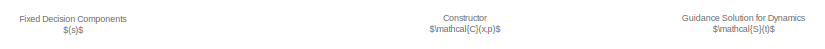
[diagram: root canvas - part 1/4, top left region]
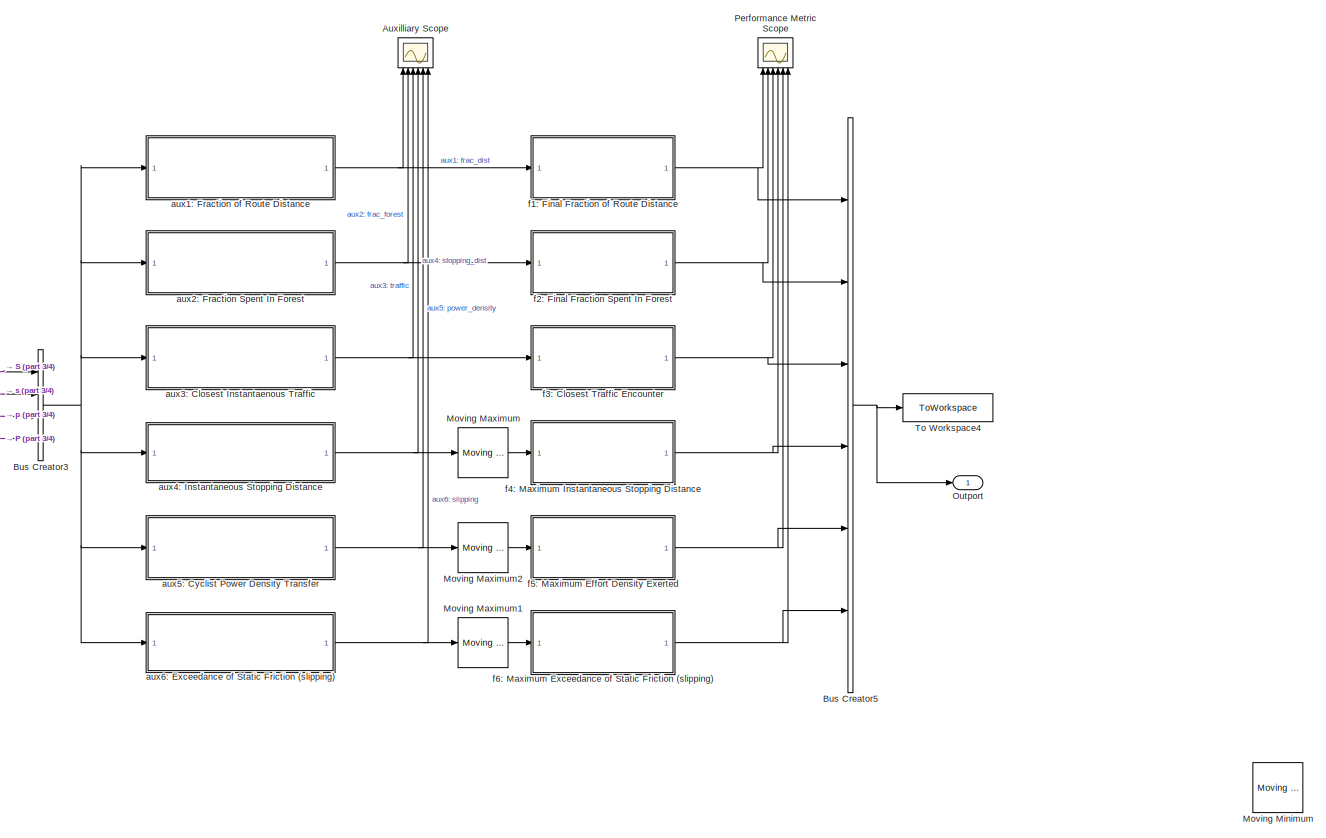
[diagram: root canvas - part 2/4, right side, full height]
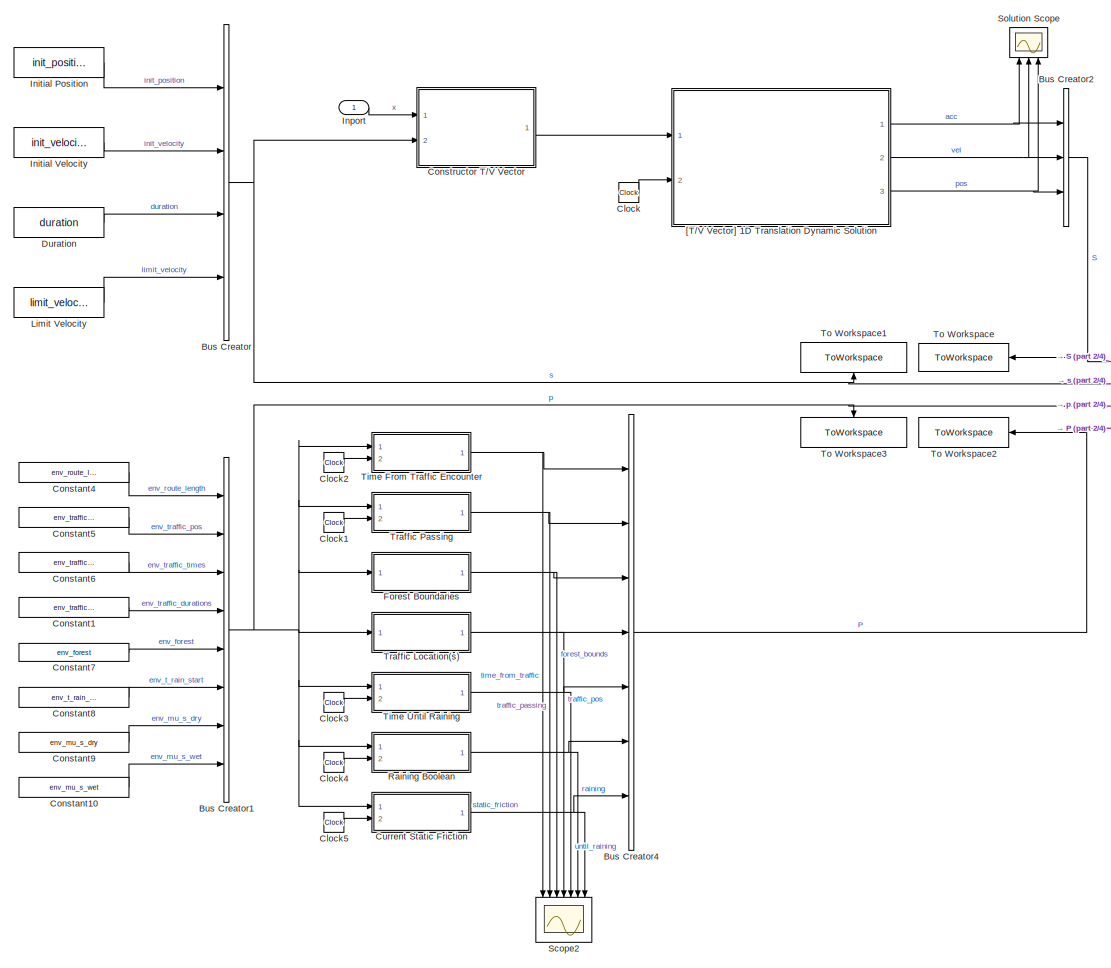
[diagram: root canvas - part 3/4, left side, full height]
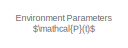
[diagram: root canvas - part 4/4, middle left region]
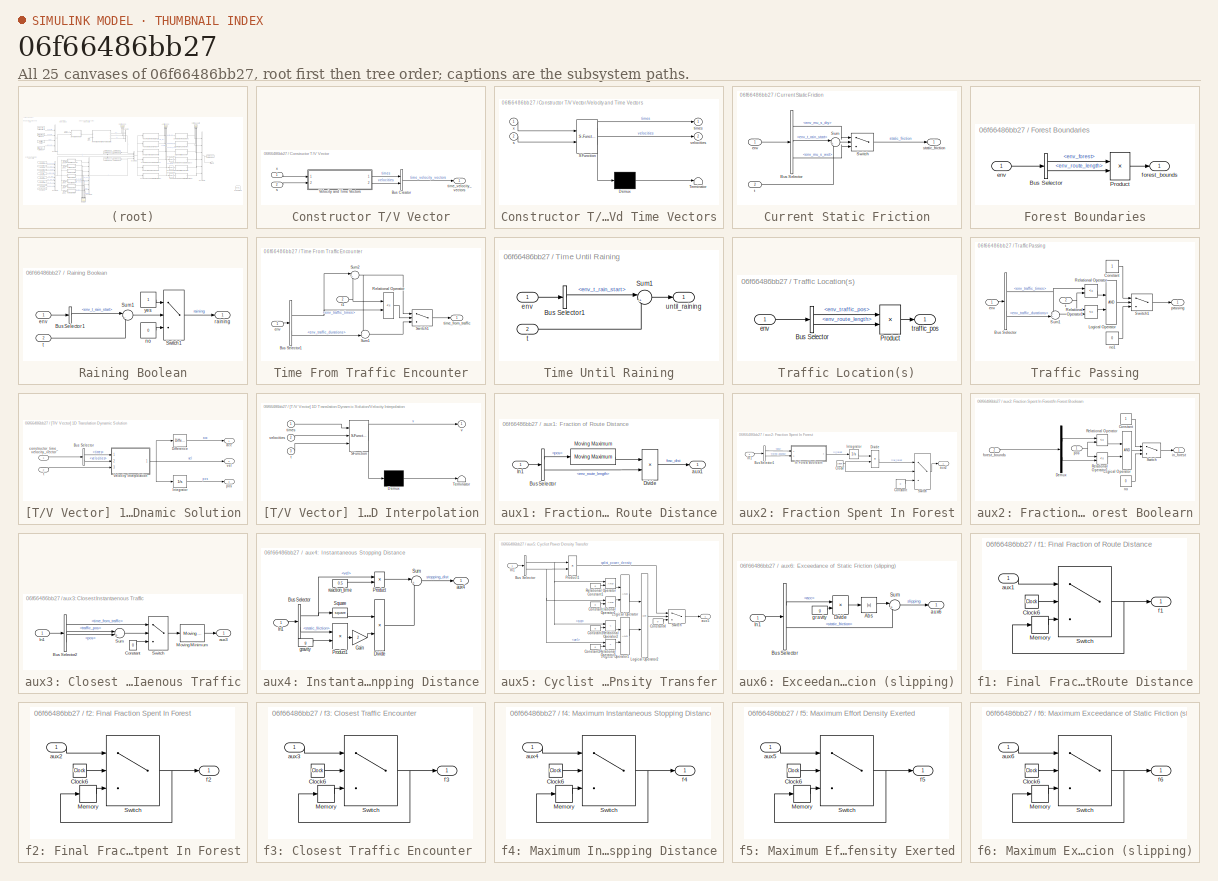
[diagram: thumbnail index - all 25 canvases of the model, root first then tree order]
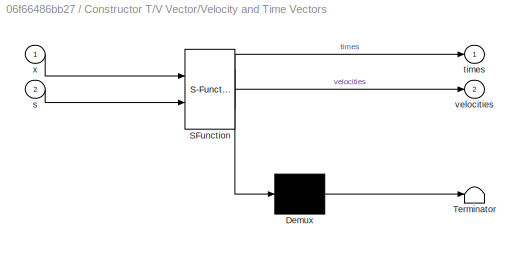
MODEL slx_06f66486bb27
KIND model
CONFIG AbsTol = auto
CONFIG EnableMultiTasking = off
CONFIG FixedStep = 0.1
CONFIG MaxStep = auto
CONFIG MinStep = auto
CONFIG RelTol = 1e-3
CONFIG SampleTimeConstraint = Unconstrained
CONFIG Solver = ode4
CONFIG SolverName = ode4
CONFIG StartTime = 0.0
CONFIG StopTime = 200
BLOCK [Scope] Auxilliary Scope
  Floating = off
  NumInputPorts = 6
  Ports = [6]
  ScopeSpecificationString = Simulink.scopes.TimeScopeBlockCfg('CurrentConfiguration', extmgr.ConfigurationSet(extmgr.Configuration('Core','General UI',true),extmgr.Configuration('Core','Source UI',true),extmgr.Configuration('Sources','WiredSimulink',true,'DataLoggingVariableName','ScopeData2'),extmgr.Configuration('Visuals','Time Domain',true,'SerializedDisplays',{struct('MinYLimReal','-0.15','MaxYLimReal','1.35','YLabelReal...<+4910ch>
BLOCK [BusCreator] Bus Creator
  DisplayOption = bar
  InheritFromInputs = on
  Inputs = 4
  Ports = [4, 1]
BLOCK [BusCreator] Bus Creator1
  DisplayOption = bar
  InheritFromInputs = on
  Inputs = 8
  Ports = [8, 1]
BLOCK [BusCreator] Bus Creator2
  DisplayOption = bar
  InheritFromInputs = on
  Inputs = 3
  Ports = [3, 1]
BLOCK [BusCreator] Bus Creator3
  DisplayOption = bar
  InheritFromInputs = on
  Inputs = 4
  Ports = [4, 1]
BLOCK [BusCreator] Bus Creator4
  DisplayOption = bar
  InheritFromInputs = on
  Inputs = 7
  Ports = [7, 1]
BLOCK [BusCreator] Bus Creator5
  DisplayOption = bar
  InheritFromInputs = on
  Inputs = 6
  Ports = [6, 1]
BLOCK [Clock] Clock
BLOCK [Clock] Clock1
BLOCK [Clock] Clock2
BLOCK [Clock] Clock3
BLOCK [Clock] Clock4
BLOCK [Clock] Clock5
BLOCK [Constant] Constant1
  Value = env_traffic_durations
BLOCK [Constant] Constant10
  Value = env_mu_s_wet
BLOCK [Constant] Constant4
  Value = env_route_length
BLOCK [Constant] Constant5
  Value = env_traffic_pos
BLOCK [Constant] Constant6
  Value = env_traffic_times
BLOCK [Constant] Constant7
  Value = env_forest
BLOCK [Constant] Constant8
  Value = env_t_rain_start
BLOCK [Constant] Constant9
  Value = env_mu_s_dry
BLOCK [SubSystem] Constructor T//V Vector
  Ports = [2, 1]
  RequestExecContextInheritance = off
BLOCK [BusCreator] Constructor T//V Vector/Bus Creator
  DisplayOption = bar
  InheritFromInputs = on
  Inputs = 2
  Ports = [2, 1]
BLOCK [SubSystem] Constructor T//V Vector/Velocity and Time Vectors
  ErrorFcn = Stateflow.Translate.translate
  PermitHierarchicalResolution = ExplicitOnly
  Ports = [2, 2]
  RequestExecContextInheritance = off
  SFBlockType = MATLAB Function
  TreatAsAtomicUnit = on
BLOCK [Demux] Constructor T//V Vector/Velocity and Time Vectors/ Demux 
  Outputs = 1
  Ports = [1, 1]
BLOCK [S-Function] Constructor T//V Vector/Velocity and Time Vectors/ SFunction 
  EnableBusSupport = on
  FunctionName = sf_sfun
  PortCounts = [2 3]
  Ports = [2, 3]
  SFcnIsStateOwnerBlock = off
  SFunctionDeploymentMode = off
  Tag = Stateflow S-Function 3
BLOCK [Terminator] Constructor T//V Vector/Velocity and Time Vectors/ Terminator 
BLOCK [Inport] Constructor T//V Vector/Velocity and Time Vectors/s
  IconDisplay = Port number
  Port = 2
BLOCK [Outport] Constructor T//V Vector/Velocity and Time Vectors/times
  IconDisplay = Port number
BLOCK [Outport] Constructor T//V Vector/Velocity and Time Vectors/velocities
  IconDisplay = Port number
  Port = 2
BLOCK [Inport] Constructor T//V Vector/Velocity and Time Vectors/x
  IconDisplay = Port number
BLOCK [Inport] Constructor T//V Vector/s
  IconDisplay = Port number
  Port = 2
BLOCK [Outport] Constructor T//V Vector/time_velocity_vectors
  IconDisplay = Port number
BLOCK [Inport] Constructor T//V Vector/x
  IconDisplay = Port number
BLOCK [SubSystem] Current Static Friction
  Ports = [2, 1]
  RequestExecContextInheritance = off
BLOCK [BusSelector] Current Static Friction/Bus Selector
  OutputAsBus = off
  OutputSignals = env_mu_s_dry,env_t_rain_start,env_mu_s_wet
  Ports = [1, 3]
BLOCK [Sum] Current Static Friction/Sum
  IconShape = round
  InputSameDT = off
  Inputs = |+-
  OutDataTypeStr = Inherit: Inherit via internal rule
  Ports = [2, 1]
  SaturateOnIntegerOverflow = off
BLOCK [Switch] Current Static Friction/Switch
  Criteria = u2 > Threshold
  InputSameDT = off
  SaturateOnIntegerOverflow = off
BLOCK [Inport] Current Static Friction/env
  IconDisplay = Port number
BLOCK [Outport] Current Static Friction/static_friction
  IconDisplay = Port number
BLOCK [Inport] Current Static Friction/t
  IconDisplay = Port number
  Port = 2
BLOCK [Constant] Duration
  Value = duration
BLOCK [SubSystem] Forest Boundaries
  Ports = [1, 1]
  RequestExecContextInheritance = off
BLOCK [BusSelector] Forest Boundaries/Bus Selector
  OutputAsBus = off
  OutputSignals = env_forest,env_route_length
  Ports = [1, 2]
BLOCK [Product] Forest Boundaries/Product
  InputSameDT = off
  OutDataTypeStr = Inherit: Inherit via internal rule
  Ports = [2, 1]
  RndMeth = Floor
  SaturateOnIntegerOverflow = off
BLOCK [Inport] Forest Boundaries/env
  IconDisplay = Port number
BLOCK [Outport] Forest Boundaries/forest_bounds
  IconDisplay = Port number
BLOCK [Constant] Initial Position
  Value = init_position
BLOCK [Constant] Initial Velocity
  Value = init_velocity
BLOCK [Inport] Inport
  IconDisplay = Port number
  OutDataTypeStr = double
  PortDimensions = 6
  SignalType = real
BLOCK [Constant] Limit Velocity
  Value = limit_velocity
BLOCK [Reference] Moving Maximum  REF=dspstat3/Moving
Maximum
  Ports = [1, 1]
  SourceBlock = dspstat3/Moving\nMaximum
  SourceProductBaseCode = DS
  SourceProductName = DSP System Toolbox
  SourceType = dsp.MovingMaximum
BLOCK [Reference] Moving Maximum1  REF=dspstat3/Moving
Maximum
  Ports = [1, 1]
  SourceBlock = dspstat3/Moving\nMaximum
  SourceProductBaseCode = DS
  SourceProductName = DSP System Toolbox
  SourceType = dsp.MovingMaximum
BLOCK [Reference] Moving Maximum2  REF=dspstat3/Moving
Maximum
  Ports = [1, 1]
  SourceBlock = dspstat3/Moving\nMaximum
  SourceProductBaseCode = DS
  SourceProductName = DSP System Toolbox
  SourceType = dsp.MovingMaximum
BLOCK [Reference] Moving Minimum  REF=dspstat3/Moving
Minimum
  Commented = on
  Ports = [1, 1]
  SourceBlock = dspstat3/Moving\nMinimum
  SourceProductBaseCode = DS
  SourceProductName = DSP System Toolbox
  SourceType = dsp.MovingMinimum
BLOCK [Outport] Outport
  IconDisplay = Port number
BLOCK [Scope] Performance Metric Scope
  Floating = off
  NumInputPorts = 6
  Ports = [6]
  ScopeSpecificationString = Simulink.scopes.TimeScopeBlockCfg('CurrentConfiguration', extmgr.ConfigurationSet(extmgr.Configuration('Core','General UI',true),extmgr.Configuration('Core','Source UI',true),extmgr.Configuration('Sources','WiredSimulink',true,'DataLoggingVariableName','ScopeData1'),extmgr.Configuration('Visuals','Time Domain',true,'SerializedDisplays',{struct('MinYLimReal','-0.15','MaxYLimReal','1.35','YLabelReal...<+5057ch>
BLOCK [SubSystem] Raining Boolean
  Ports = [2, 1]
  RequestExecContextInheritance = off
BLOCK [BusSelector] Raining Boolean/Bus Selector1
  OutputAsBus = off
  OutputSignals = env_t_rain_start
  Ports = [1, 1]
BLOCK [Sum] Raining Boolean/Sum1
  IconShape = round
  InputSameDT = off
  Inputs = |-+
  OutDataTypeStr = Inherit: Inherit via internal rule
  Ports = [2, 1]
  SaturateOnIntegerOverflow = off
BLOCK [Switch] Raining Boolean/Switch1
  Criteria = u2 > Threshold
  InputSameDT = off
  SaturateOnIntegerOverflow = off
BLOCK [Inport] Raining Boolean/env
  IconDisplay = Port number
BLOCK [Constant] Raining Boolean/no
  Value = 0
BLOCK [Outport] Raining Boolean/raining
  IconDisplay = Port number
BLOCK [Inport] Raining Boolean/t
  IconDisplay = Port number
  Port = 2
BLOCK [Constant] Raining Boolean/yes
BLOCK [Scope] Scope2
  Floating = off
  NumInputPorts = 7
  Ports = [7]
  ScopeSpecificationString = Simulink.scopes.TimeScopeBlockCfg('CurrentConfiguration', extmgr.ConfigurationSet(extmgr.Configuration('Core','General UI',true),extmgr.Configuration('Core','Source UI',true),extmgr.Configuration('Sources','WiredSimulink',true),extmgr.Configuration('Visuals','Time Domain',true,'SerializedDisplays',{struct('MinYLimReal','-40.5125','MaxYLimReal','165.6125','YLabelReal','','MinYLimMag','0.00000','Max...<+6292ch>
BLOCK [Scope] Solution Scope
  Floating = off
  NumInputPorts = 3
  Ports = [3]
  ScopeSpecificationString = Simulink.scopes.TimeScopeBlockCfg('CurrentConfiguration', extmgr.ConfigurationSet(extmgr.Configuration('Core','General UI',true),extmgr.Configuration('Core','Source UI',true),extmgr.Configuration('Sources','WiredSimulink',true,'DataLoggingVariableName','ScopeData1'),extmgr.Configuration('Visuals','Time Domain',true,'SerializedDisplays',{struct('MinYLimReal','-0.50393','MaxYLimReal','0.19607','YLab...<+2756ch>
BLOCK [SubSystem] Time From Traffic Encounter
  Ports = [2, 1]
  RequestExecContextInheritance = off
BLOCK [BusSelector] Time From Traffic Encounter/Bus Selector1
  OutputAsBus = off
  OutputSignals = env_traffic_times,env_traffic_durations
  Ports = [1, 2]
BLOCK [RelationalOperator] Time From Traffic Encounter/Relational Operator
  InputSameDT = off
  Operator = <=
  OutDataTypeStr = boolean
  Ports = [2, 1]
  RndMeth = Simplest
BLOCK [Sum] Time From Traffic Encounter/Sum1
  IconShape = round
  InputSameDT = off
  Inputs = --|
  OutDataTypeStr = Inherit: Inherit via internal rule
  Ports = [2, 1]
  SaturateOnIntegerOverflow = off
BLOCK [Sum] Time From Traffic Encounter/Sum2
  IconShape = round
  InputSameDT = off
  Inputs = |+-
  OutDataTypeStr = Inherit: Inherit via internal rule
  Ports = [2, 1]
  SaturateOnIntegerOverflow = off
BLOCK [Switch] Time From Traffic Encounter/Switch1
  Criteria = u2 > Threshold
  InputSameDT = off
  SaturateOnIntegerOverflow = off
BLOCK [Inport] Time From Traffic Encounter/env
  IconDisplay = Port number
BLOCK [Inport] Time From Traffic Encounter/t1
  IconDisplay = Port number
  Port = 2
BLOCK [Outport] Time From Traffic Encounter/time_from_traffic
  IconDisplay = Port number
BLOCK [SubSystem] Time Until Raining
  Ports = [2, 1]
  RequestExecContextInheritance = off
BLOCK [BusSelector] Time Until Raining/Bus Selector1
  OutputAsBus = off
  OutputSignals = env_t_rain_start
  Ports = [1, 1]
BLOCK [Sum] Time Until Raining/Sum1
  IconShape = round
  InputSameDT = off
  Inputs = |+-
  OutDataTypeStr = Inherit: Inherit via internal rule
  Ports = [2, 1]
  SaturateOnIntegerOverflow = off
BLOCK [Inport] Time Until Raining/env
  IconDisplay = Port number
BLOCK [Inport] Time Until Raining/t
  IconDisplay = Port number
  Port = 2
BLOCK [Outport] Time Until Raining/until_raining
  IconDisplay = Port number
BLOCK [ToWorkspace] To Workspace
  FixptAsFi = on
  MaxDataPoints = inf
  Ports = [1]
  SampleTime = -1
  SaveFormat = Timeseries
  VariableName = S
BLOCK [ToWorkspace] To Workspace1
  FixptAsFi = on
  MaxDataPoints = inf
  Ports = [1]
  SampleTime = -1
  SaveFormat = Timeseries
  VariableName = s
BLOCK [ToWorkspace] To Workspace2
  FixptAsFi = on
  MaxDataPoints = inf
  Ports = [1]
  SampleTime = -1
  SaveFormat = Timeseries
  VariableName = P
BLOCK [ToWorkspace] To Workspace3
  FixptAsFi = on
  MaxDataPoints = inf
  Ports = [1]
  SampleTime = -1
  SaveFormat = Timeseries
  VariableName = p
BLOCK [ToWorkspace] To Workspace4
  FixptAsFi = on
  MaxDataPoints = inf
  Ports = [1]
  SampleTime = -1
  SaveFormat = Timeseries
  VariableName = f
BLOCK [SubSystem] Traffic Location(s)
  Ports = [1, 1]
  RequestExecContextInheritance = off
BLOCK [BusSelector] Traffic Location(s)/Bus Selector
  OutputAsBus = off
  OutputSignals = env_traffic_pos,env_route_length
  Ports = [1, 2]
BLOCK [Product] Traffic Location(s)/Product
  InputSameDT = off
  OutDataTypeStr = Inherit: Inherit via internal rule
  Ports = [2, 1]
  RndMeth = Floor
  SaturateOnIntegerOverflow = off
BLOCK [Inport] Traffic Location(s)/env
  IconDisplay = Port number
BLOCK [Outport] Traffic Location(s)/traffic_pos
  IconDisplay = Port number
BLOCK [SubSystem] Traffic Passing
  Ports = [2, 1]
  RequestExecContextInheritance = off
BLOCK [BusSelector] Traffic Passing/Bus Selector
  OutputAsBus = off
  OutputSignals = env_traffic_times,env_traffic_durations
  Ports = [1, 2]
BLOCK [Constant] Traffic Passing/Constant
BLOCK [Logic] Traffic Passing/Logical Operator
  AllPortsSameDT = off
  OutDataTypeStr = boolean
  Ports = [2, 1]
BLOCK [RelationalOperator] Traffic Passing/Relational Operator
  InputSameDT = off
  Operator = <=
  OutDataTypeStr = boolean
  Ports = [2, 1]
  RndMeth = Simplest
BLOCK [RelationalOperator] Traffic Passing/Relational Operator1
  InputSameDT = off
  Operator = <=
  OutDataTypeStr = boolean
  Ports = [2, 1]
  RndMeth = Simplest
BLOCK [Sum] Traffic Passing/Sum1
  IconShape = round
  InputSameDT = off
  Inputs = ++|
  OutDataTypeStr = Inherit: Inherit via internal rule
  Ports = [2, 1]
  SaturateOnIntegerOverflow = off
BLOCK [Switch] Traffic Passing/Switch1
  Criteria = u2 > Threshold
  InputSameDT = off
  SaturateOnIntegerOverflow = off
BLOCK [Inport] Traffic Passing/env
  IconDisplay = Port number
BLOCK [Constant] Traffic Passing/no1
  Value = 0
BLOCK [Outport] Traffic Passing/passing
  IconDisplay = Port number
BLOCK [Inport] Traffic Passing/t
  IconDisplay = Port number
  Port = 2
BLOCK [SubSystem] [T//V Vector] 1D Translation Dynamic Solution
  Ports = [2, 3]
  RequestExecContextInheritance = off
BLOCK [BusSelector] [T//V Vector] 1D Translation Dynamic Solution/Bus Selector
  OutputAsBus = off
  OutputSignals = times,velocities
  Ports = [1, 2]
BLOCK [Reference] [T//V Vector] 1D Translation Dynamic Solution/Difference  REF=simulink/Discrete/Difference
  Ports = [1, 1]
  SourceBlock = simulink/Discrete/Difference
  SourceProductBaseCode = SL
  SourceProductName = Simulink
  SourceType = Difference
BLOCK [Integrator] [T//V Vector] 1D Translation Dynamic Solution/Integrator
  InitialCondition = init_position
  Ports = [1, 1]
BLOCK [SubSystem] [T//V Vector] 1D Translation Dynamic Solution/Velocity Interpolation
  ErrorFcn = Stateflow.Translate.translate
  PermitHierarchicalResolution = ExplicitOnly
  Ports = [3, 1]
  RequestExecContextInheritance = off
  SFBlockType = MATLAB Function
  TreatAsAtomicUnit = on
BLOCK [Demux] [T//V Vector] 1D Translation Dynamic Solution/Velocity Interpolation/ Demux 
  Outputs = 1
  Ports = [1, 1]
BLOCK [S-Function] [T//V Vector] 1D Translation Dynamic Solution/Velocity Interpolation/ SFunction 
  EnableBusSupport = on
  FunctionName = sf_sfun
  PortCounts = [3 2]
  Ports = [3, 2]
  SFcnIsStateOwnerBlock = off
  SFunctionDeploymentMode = off
  Tag = Stateflow S-Function 2
BLOCK [Terminator] [T//V Vector] 1D Translation Dynamic Solution/Velocity Interpolation/ Terminator 
BLOCK [Inport] [T//V Vector] 1D Translation Dynamic Solution/Velocity Interpolation/t
  IconDisplay = Port number
  Port = 3
BLOCK [Inport] [T//V Vector] 1D Translation Dynamic Solution/Velocity Interpolation/times
  IconDisplay = Port number
BLOCK [Outport] [T//V Vector] 1D Translation Dynamic Solution/Velocity Interpolation/v
  IconDisplay = Port number
BLOCK [Inport] [T//V Vector] 1D Translation Dynamic Solution/Velocity Interpolation/velocities
  IconDisplay = Port number
  Port = 2
BLOCK [Outport] [T//V Vector] 1D Translation Dynamic Solution/acc
  IconDisplay = Port number
BLOCK [Inport] [T//V Vector] 1D Translation Dynamic Solution/constructor_time_velocity_vector
  IconDisplay = Port number
BLOCK [Outport] [T//V Vector] 1D Translation Dynamic Solution/pos
  IconDisplay = Port number
  Port = 3
BLOCK [Inport] [T//V Vector] 1D Translation Dynamic Solution/t
  IconDisplay = Port number
  Port = 2
BLOCK [Outport] [T//V Vector] 1D Translation Dynamic Solution/vel
  IconDisplay = Port number
  Port = 2
BLOCK [SubSystem] aux1: Fraction of Route Distance
  Ports = [1, 1]
  RequestExecContextInheritance = off
BLOCK [BusSelector] aux1: Fraction of Route Distance/Bus Selector
  OutputAsBus = off
  OutputSignals = S.pos,p.env_route_length
  Ports = [1, 2]
BLOCK [Product] aux1: Fraction of Route Distance/Divide
  InputSameDT = off
  Inputs = */
  OutDataTypeStr = Inherit: Inherit via internal rule
  Ports = [2, 1]
  RndMeth = Floor
  SaturateOnIntegerOverflow = off
BLOCK [Inport] aux1: Fraction of Route Distance/In1
  IconDisplay = Port number
BLOCK [Reference] aux1: Fraction of Route Distance/Moving Maximum  REF=dspstat3/Moving
Maximum
  Ports = [1, 1]
  SourceBlock = dspstat3/Moving\nMaximum
  SourceProductBaseCode = DS
  SourceProductName = DSP System Toolbox
  SourceType = dsp.MovingMaximum
BLOCK [Outport] aux1: Fraction of Route Distance/aux1
  IconDisplay = Port number
BLOCK [SubSystem] aux2: Fraction Spent In Forest
  Ports = [1, 1]
  RequestExecContextInheritance = off
BLOCK [BusSelector] aux2: Fraction Spent In Forest/Bus Selector1
  OutputAsBus = off
  OutputSignals = S.pos,P.forest_bounds
  Ports = [1, 2]
BLOCK [Clock] aux2: Fraction Spent In Forest/Clock7
BLOCK [Constant] aux2: Fraction Spent In Forest/Constant
  Value = 0
BLOCK [Product] aux2: Fraction Spent In Forest/Divide
  InputSameDT = off
  Inputs = */
  OutDataTypeStr = Inherit: Inherit via internal rule
  Ports = [2, 1]
  RndMeth = Floor
  SaturateOnIntegerOverflow = off
BLOCK [SubSystem] aux2: Fraction Spent In Forest/In Forest Boolearn
  Ports = [2, 1]
  RequestExecContextInheritance = off
BLOCK [Constant] aux2: Fraction Spent In Forest/In Forest Boolearn/Constant
BLOCK [Demux] aux2: Fraction Spent In Forest/In Forest Boolearn/Demux
  DisplayOption = bar
  Outputs = 2
  Ports = [1, 2]
BLOCK [Logic] aux2: Fraction Spent In Forest/In Forest Boolearn/Logical Operator
  AllPortsSameDT = off
  OutDataTypeStr = boolean
  Ports = [2, 1]
BLOCK [RelationalOperator] aux2: Fraction Spent In Forest/In Forest Boolearn/Relational Operator
  InputSameDT = off
  Operator = <=
  OutDataTypeStr = boolean
  Ports = [2, 1]
  RndMeth = Simplest
BLOCK [RelationalOperator] aux2: Fraction Spent In Forest/In Forest Boolearn/Relational Operator1
  InputSameDT = off
  Operator = <=
  OutDataTypeStr = boolean
  Ports = [2, 1]
  RndMeth = Simplest
BLOCK [Switch] aux2: Fraction Spent In Forest/In Forest Boolearn/Switch
  Criteria = u2 > Threshold
  InputSameDT = off
  SaturateOnIntegerOverflow = off
BLOCK [Inport] aux2: Fraction Spent In Forest/In Forest Boolearn/forest_bounds
  IconDisplay = Port number
  Port = 2
BLOCK [Outport] aux2: Fraction Spent In Forest/In Forest Boolearn/in_forest 
  IconDisplay = Port number
BLOCK [Constant] aux2: Fraction Spent In Forest/In Forest Boolearn/no
  Value = 0
BLOCK [Inport] aux2: Fraction Spent In Forest/In Forest Boolearn/pos 
  IconDisplay = Port number
BLOCK [Inport] aux2: Fraction Spent In Forest/In1
  IconDisplay = Port number
BLOCK [Integrator] aux2: Fraction Spent In Forest/Integrator
  Ports = [1, 1]
BLOCK [Switch] aux2: Fraction Spent In Forest/Switch
  Criteria = u2 > Threshold
  InputSameDT = off
  SaturateOnIntegerOverflow = off
BLOCK [Outport] aux2: Fraction Spent In Forest/aux2
  IconDisplay = Port number
BLOCK [SubSystem] aux3: Closest Instantaenous Traffic
  Ports = [1, 1]
  RequestExecContextInheritance = off
BLOCK [BusSelector] aux3: Closest Instantaenous Traffic/Bus Selector2
  OutputAsBus = off
  OutputSignals = P.time_from_traffic,P.traffic_pos,S.pos
  Ports = [1, 3]
BLOCK [Constant] aux3: Closest Instantaenous Traffic/Constant
  Value = 0
BLOCK [Inport] aux3: Closest Instantaenous Traffic/In1
  IconDisplay = Port number
BLOCK [Reference] aux3: Closest Instantaenous Traffic/Moving Minimum  REF=dspstat3/Moving
Minimum
  Ports = [1, 1]
  SourceBlock = dspstat3/Moving\nMinimum
  SourceProductBaseCode = DS
  SourceProductName = DSP System Toolbox
  SourceType = dsp.MovingMinimum
BLOCK [Sum] aux3: Closest Instantaenous Traffic/Sum
  IconShape = round
  InputSameDT = off
  Inputs = |+-
  OutDataTypeStr = Inherit: Inherit via internal rule
  Ports = [2, 1]
  SaturateOnIntegerOverflow = off
BLOCK [Switch] aux3: Closest Instantaenous Traffic/Switch
  Criteria = u2 > Threshold
  InputSameDT = off
  SaturateOnIntegerOverflow = off
BLOCK [Outport] aux3: Closest Instantaenous Traffic/aux3
  IconDisplay = Port number
BLOCK [SubSystem] aux4: Instantaneous Stopping Distance
  Ports = [1, 1]
  RequestExecContextInheritance = off
BLOCK [BusSelector] aux4: Instantaneous Stopping Distance/Bus Selector
  OutputAsBus = off
  OutputSignals = S.vel,P.static_friction
  Ports = [1, 2]
BLOCK [Product] aux4: Instantaneous Stopping Distance/Divide
  InputSameDT = off
  Inputs = */
  OutDataTypeStr = Inherit: Inherit via internal rule
  Ports = [2, 1]
  RndMeth = Floor
  SaturateOnIntegerOverflow = off
BLOCK [Gain] aux4: Instantaneous Stopping Distance/Gain
  Gain = 2
  OutDataTypeStr = Inherit: Inherit via internal rule
  ParamDataTypeStr = Inherit: Inherit via internal rule
  SaturateOnIntegerOverflow = off
BLOCK [Inport] aux4: Instantaneous Stopping Distance/In1
  IconDisplay = Port number
BLOCK [Product] aux4: Instantaneous Stopping Distance/Product
  InputSameDT = off
  OutDataTypeStr = Inherit: Inherit via internal rule
  Ports = [2, 1]
  RndMeth = Floor
  SaturateOnIntegerOverflow = off
BLOCK [Product] aux4: Instantaneous Stopping Distance/Product1
  InputSameDT = off
  OutDataTypeStr = Inherit: Inherit via internal rule
  Ports = [2, 1]
  RndMeth = Floor
  SaturateOnIntegerOverflow = off
BLOCK [Math] aux4: Instantaneous Stopping Distance/Square
  Operator = square
  Ports = [1, 1]
  SignedPower = off
BLOCK [Sum] aux4: Instantaneous Stopping Distance/Sum
  IconShape = round
  InputSameDT = off
  Inputs = |++
  OutDataTypeStr = Inherit: Inherit via internal rule
  Ports = [2, 1]
  SaturateOnIntegerOverflow = off
BLOCK [Outport] aux4: Instantaneous Stopping Distance/aux4
  IconDisplay = Port number
BLOCK [Constant] aux4: Instantaneous Stopping Distance/gravity
  Value = g
BLOCK [Constant] aux4: Instantaneous Stopping Distance/reaction_time
  Value = 0.5
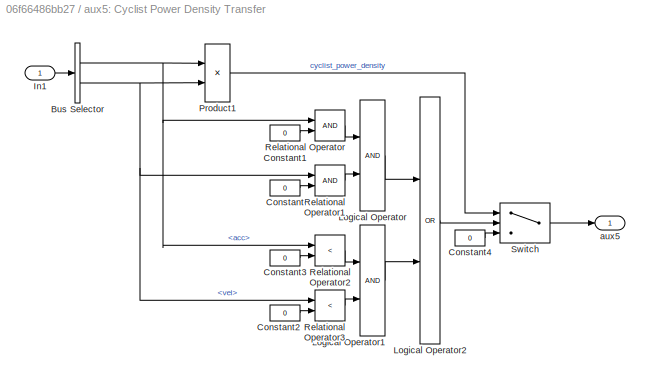
BLOCK [SubSystem] aux5: Cyclist Power Density Transfer
  Ports = [1, 1]
  RequestExecContextInheritance = off
BLOCK [BusSelector] aux5: Cyclist Power Density Transfer/Bus Selector
  OutputAsBus = off
  OutputSignals = S.acc,S.vel
  Ports = [1, 2]
BLOCK [Constant] aux5: Cyclist Power Density Transfer/Constant
  Value = 0
BLOCK [Constant] aux5: Cyclist Power Density Transfer/Constant1
  Value = 0
BLOCK [Constant] aux5: Cyclist Power Density Transfer/Constant2
  Value = 0
BLOCK [Constant] aux5: Cyclist Power Density Transfer/Constant3
  Value = 0
BLOCK [Constant] aux5: Cyclist Power Density Transfer/Constant4
  Value = 0
BLOCK [Inport] aux5: Cyclist Power Density Transfer/In1
  IconDisplay = Port number
BLOCK [Logic] aux5: Cyclist Power Density Transfer/Logical Operator
  AllPortsSameDT = off
  OutDataTypeStr = boolean
  Ports = [2, 1]
BLOCK [Logic] aux5: Cyclist Power Density Transfer/Logical Operator1
  AllPortsSameDT = off
  OutDataTypeStr = boolean
  Ports = [2, 1]
BLOCK [Logic] aux5: Cyclist Power Density Transfer/Logical Operator2
  AllPortsSameDT = off
  Operator = OR
  OutDataTypeStr = boolean
  Ports = [2, 1]
BLOCK [Product] aux5: Cyclist Power Density Transfer/Product1
  InputSameDT = off
  OutDataTypeStr = Inherit: Inherit via internal rule
  Ports = [2, 1]
  RndMeth = Floor
  SaturateOnIntegerOverflow = off
BLOCK [RelationalOperator] aux5: Cyclist Power Density Transfer/Relational Operator
  InputSameDT = off
  OutDataTypeStr = boolean
  Ports = [2, 1]
  RndMeth = Simplest
BLOCK [RelationalOperator] aux5: Cyclist Power Density Transfer/Relational Operator1
  InputSameDT = off
  OutDataTypeStr = boolean
  Ports = [2, 1]
  RndMeth = Simplest
BLOCK [RelationalOperator] aux5: Cyclist Power Density Transfer/Relational Operator2
  InputSameDT = off
  Operator = <
  OutDataTypeStr = boolean
  Ports = [2, 1]
  RndMeth = Simplest
BLOCK [RelationalOperator] aux5: Cyclist Power Density Transfer/Relational Operator3
  InputSameDT = off
  Operator = <
  OutDataTypeStr = boolean
  Ports = [2, 1]
  RndMeth = Simplest
BLOCK [Switch] aux5: Cyclist Power Density Transfer/Switch
  Criteria = u2 > Threshold
  InputSameDT = off
  SaturateOnIntegerOverflow = off
BLOCK [Outport] aux5: Cyclist Power Density Transfer/aux5
  IconDisplay = Port number
BLOCK [SubSystem] aux6: Exceedance of Static Friction (slipping)
  Ports = [1, 1]
  RequestExecContextInheritance = off
BLOCK [Abs] aux6: Exceedance of Static Friction (slipping)/Abs
  SaturateOnIntegerOverflow = off
BLOCK [BusSelector] aux6: Exceedance of Static Friction (slipping)/Bus Selector
  OutputAsBus = off
  OutputSignals = S.acc,P.static_friction
  Ports = [1, 2]
BLOCK [Product] aux6: Exceedance of Static Friction (slipping)/Divide
  InputSameDT = off
  Inputs = */
  OutDataTypeStr = Inherit: Inherit via internal rule
  Ports = [2, 1]
  RndMeth = Floor
  SaturateOnIntegerOverflow = off
BLOCK [Inport] aux6: Exceedance of Static Friction (slipping)/In1
  IconDisplay = Port number
BLOCK [Sum] aux6: Exceedance of Static Friction (slipping)/Sum
  IconShape = round
  InputSameDT = off
  Inputs = |+-
  OutDataTypeStr = Inherit: Inherit via internal rule
  Ports = [2, 1]
  SaturateOnIntegerOverflow = off
BLOCK [Outport] aux6: Exceedance of Static Friction (slipping)/aux6
  IconDisplay = Port number
BLOCK [Constant] aux6: Exceedance of Static Friction (slipping)/gravity
  Value = g
BLOCK [SubSystem] f1: Final Fraction of Route Distance
  Ports = [1, 1]
  RequestExecContextInheritance = off
BLOCK [Clock] f1: Final Fraction of Route Distance/Clock6
BLOCK [Memory] f1: Final Fraction of Route Distance/Memory
BLOCK [Switch] f1: Final Fraction of Route Distance/Switch
  InputSameDT = off
  SaturateOnIntegerOverflow = off
  Threshold = duration
BLOCK [Inport] f1: Final Fraction of Route Distance/aux1
  IconDisplay = Port number
BLOCK [Outport] f1: Final Fraction of Route Distance/f1
  IconDisplay = Port number
BLOCK [SubSystem] f2: Final Fraction Spent In Forest
  Ports = [1, 1]
  RequestExecContextInheritance = off
BLOCK [Clock] f2: Final Fraction Spent In Forest/Clock6
BLOCK [Memory] f2: Final Fraction Spent In Forest/Memory
BLOCK [Switch] f2: Final Fraction Spent In Forest/Switch
  InputSameDT = off
  SaturateOnIntegerOverflow = off
  Threshold = duration
BLOCK [Inport] f2: Final Fraction Spent In Forest/aux2
  IconDisplay = Port number
BLOCK [Outport] f2: Final Fraction Spent In Forest/f2
  IconDisplay = Port number
BLOCK [SubSystem] f3: Closest Traffic Encounter 
  Ports = [1, 1]
  RequestExecContextInheritance = off
BLOCK [Clock] f3: Closest Traffic Encounter /Clock6
BLOCK [Memory] f3: Closest Traffic Encounter /Memory
BLOCK [Switch] f3: Closest Traffic Encounter /Switch
  InputSameDT = off
  SaturateOnIntegerOverflow = off
  Threshold = duration
BLOCK [Inport] f3: Closest Traffic Encounter /aux3
  IconDisplay = Port number
BLOCK [Outport] f3: Closest Traffic Encounter /f3
  IconDisplay = Port number
BLOCK [SubSystem] f4: Maximum Instantaneous Stopping Distance
  Ports = [1, 1]
  RequestExecContextInheritance = off
BLOCK [Clock] f4: Maximum Instantaneous Stopping Distance/Clock6
BLOCK [Memory] f4: Maximum Instantaneous Stopping Distance/Memory
BLOCK [Switch] f4: Maximum Instantaneous Stopping Distance/Switch
  InputSameDT = off
  SaturateOnIntegerOverflow = off
  Threshold = duration
BLOCK [Inport] f4: Maximum Instantaneous Stopping Distance/aux4
  IconDisplay = Port number
BLOCK [Outport] f4: Maximum Instantaneous Stopping Distance/f4
  IconDisplay = Port number
BLOCK [SubSystem] f5: Maximum Effort Density Exerted
  Ports = [1, 1]
  RequestExecContextInheritance = off
BLOCK [Clock] f5: Maximum Effort Density Exerted/Clock6
BLOCK [Memory] f5: Maximum Effort Density Exerted/Memory
BLOCK [Switch] f5: Maximum Effort Density Exerted/Switch
  InputSameDT = off
  SaturateOnIntegerOverflow = off
  Threshold = duration
BLOCK [Inport] f5: Maximum Effort Density Exerted/aux5
  IconDisplay = Port number
BLOCK [Outport] f5: Maximum Effort Density Exerted/f5
  IconDisplay = Port number
BLOCK [SubSystem] f6: Maximum Exceedance of Static Friction (slipping)
  Ports = [1, 1]
  RequestExecContextInheritance = off
BLOCK [Clock] f6: Maximum Exceedance of Static Friction (slipping)/Clock6
BLOCK [Memory] f6: Maximum Exceedance of Static Friction (slipping)/Memory
BLOCK [Switch] f6: Maximum Exceedance of Static Friction (slipping)/Switch
  InputSameDT = off
  SaturateOnIntegerOverflow = off
  Threshold = duration
BLOCK [Inport] f6: Maximum Exceedance of Static Friction (slipping)/aux6
  IconDisplay = Port number
BLOCK [Outport] f6: Maximum Exceedance of Static Friction (slipping)/f6
  IconDisplay = Port number
ANNOTATION (root): Environment Parameters $\mathcal{P}(t)$
ANNOTATION (root): Fixed Decision Components $(s)$
ANNOTATION (root): Constructor $\mathcal{C}(x,p)$
ANNOTATION (root): Guidance Solution for Dynamics $\mathcal{S}(t)$
NET Bus Creator1:1 -> Bus Creator3:3, Current Static Friction:1, Forest Boundaries:1, Raining Boolean:1, Time From Traffic Encounter:1, Time Until Raining:1, To Workspace3:1, Traffic Location(s):1, Traffic Passing:1
NET Bus Creator2:1 -> Bus Creator3:1, To Workspace:1
NET Bus Creator3:1 -> aux1: Fraction of Route Distance:1, aux2: Fraction Spent In Forest:1, aux3: Closest Instantaenous Traffic:1, aux4: Instantaneous Stopping Distance:1, aux5: Cyclist Power Density Transfer:1, aux6: Exceedance of Static Friction (slipping):1
NET Bus Creator4:1 -> Bus Creator3:4, To Workspace2:1
NET Bus Creator5:1 -> Outport:1, To Workspace4:1
NET Bus Creator:1 -> Bus Creator3:2, Constructor T//V Vector:2, To Workspace1:1
LINE Clock1:1 -> Traffic Passing:2
LINE Clock2:1 -> Time From Traffic Encounter:2
LINE Clock3:1 -> Time Until Raining:2
LINE Clock4:1 -> Raining Boolean:2
LINE Clock5:1 -> Current Static Friction:2
LINE Clock:1 -> [T//V Vector] 1D Translation Dynamic Solution:2
LINE Constant10:1 -> Bus Creator1:8
LINE Constant1:1 -> Bus Creator1:4
LINE Constant4:1 -> Bus Creator1:1
LINE Constant5:1 -> Bus Creator1:2
LINE Constant6:1 -> Bus Creator1:3
LINE Constant7:1 -> Bus Creator1:5
LINE Constant8:1 -> Bus Creator1:6
LINE Constant9:1 -> Bus Creator1:7
LINE Constructor T//V Vector/Bus Creator:1 -> Constructor T//V Vector/time_velocity_vectors:1
LINE Constructor T//V Vector/Velocity and Time Vectors:1 -> Constructor T//V Vector/Bus Creator:1
LINE Constructor T//V Vector/Velocity and Time Vectors:2 -> Constructor T//V Vector/Bus Creator:2
LINE Constructor T//V Vector/s:1 -> Constructor T//V Vector/Velocity and Time Vectors:2
LINE Constructor T//V Vector/x:1 -> Constructor T//V Vector/Velocity and Time Vectors:1
LINE Constructor T//V Vector:1 -> [T//V Vector] 1D Translation Dynamic Solution:1
LINE Current Static Friction/Bus Selector:1 -> Current Static Friction/Switch:1
LINE Current Static Friction/Bus Selector:2 -> Current Static Friction/Sum:1
LINE Current Static Friction/Bus Selector:3 -> Current Static Friction/Switch:3
LINE Current Static Friction/Sum:1 -> Current Static Friction/Switch:2
LINE Current Static Friction/Switch:1 -> Current Static Friction/static_friction:1
LINE Current Static Friction/env:1 -> Current Static Friction/Bus Selector:1
LINE Current Static Friction/t:1 -> Current Static Friction/Sum:2
NET Current Static Friction:1 -> Bus Creator4:7, Scope2:7
LINE Duration:1 -> Bus Creator:3
LINE Forest Boundaries/Bus Selector:1 -> Forest Boundaries/Product:1
LINE Forest Boundaries/Bus Selector:2 -> Forest Boundaries/Product:2
LINE Forest Boundaries/Product:1 -> Forest Boundaries/forest_bounds:1
LINE Forest Boundaries/env:1 -> Forest Boundaries/Bus Selector:1
NET Forest Boundaries:1 -> Bus Creator4:3, Scope2:3
LINE Initial Position:1 -> Bus Creator:1
LINE Initial Velocity:1 -> Bus Creator:2
LINE Inport:1 -> Constructor T//V Vector:1
LINE Limit Velocity:1 -> Bus Creator:4
LINE Moving Maximum1:1 -> f6: Maximum Exceedance of Static Friction (slipping):1
LINE Moving Maximum2:1 -> f5: Maximum Effort Density Exerted:1
LINE Moving Maximum:1 -> f4: Maximum Instantaneous Stopping Distance:1
LINE Raining Boolean/Bus Selector1:1 -> Raining Boolean/Sum1:1
LINE Raining Boolean/Sum1:1 -> Raining Boolean/Switch1:2
LINE Raining Boolean/Switch1:1 -> Raining Boolean/raining:1
LINE Raining Boolean/env:1 -> Raining Boolean/Bus Selector1:1
LINE Raining Boolean/no:1 -> Raining Boolean/Switch1:3
LINE Raining Boolean/t:1 -> Raining Boolean/Sum1:2
LINE Raining Boolean/yes:1 -> Raining Boolean/Switch1:1
NET Raining Boolean:1 -> Bus Creator4:6, Scope2:6
NET Time From Traffic Encounter/Bus Selector1:1 -> Time From Traffic Encounter/Relational Operator:2, Time From Traffic Encounter/Sum2:1
LINE Time From Traffic Encounter/Bus Selector1:2 -> Time From Traffic Encounter/Sum1:2
LINE Time From Traffic Encounter/Relational Operator:1 -> Time From Traffic Encounter/Switch1:2
LINE Time From Traffic Encounter/Sum1:1 -> Time From Traffic Encounter/Switch1:3
NET Time From Traffic Encounter/Sum2:1 -> Time From Traffic Encounter/Sum1:1, Time From Traffic Encounter/Switch1:1
LINE Time From Traffic Encounter/Switch1:1 -> Time From Traffic Encounter/time_from_traffic:1
LINE Time From Traffic Encounter/env:1 -> Time From Traffic Encounter/Bus Selector1:1
NET Time From Traffic Encounter/t1:1 -> Time From Traffic Encounter/Relational Operator:1, Time From Traffic Encounter/Sum2:2
NET Time From Traffic Encounter:1 -> Bus Creator4:1, Scope2:1
LINE Time Until Raining/Bus Selector1:1 -> Time Until Raining/Sum1:1
LINE Time Until Raining/Sum1:1 -> Time Until Raining/until_raining:1
LINE Time Until Raining/env:1 -> Time Until Raining/Bus Selector1:1
LINE Time Until Raining/t:1 -> Time Until Raining/Sum1:2
NET Time Until Raining:1 -> Bus Creator4:5, Scope2:5
LINE Traffic Location(s)/Bus Selector:1 -> Traffic Location(s)/Product:1
LINE Traffic Location(s)/Bus Selector:2 -> Traffic Location(s)/Product:2
LINE Traffic Location(s)/Product:1 -> Traffic Location(s)/traffic_pos:1
LINE Traffic Location(s)/env:1 -> Traffic Location(s)/Bus Selector:1
NET Traffic Location(s):1 -> Bus Creator4:4, Scope2:4
NET Traffic Passing/Bus Selector:1 -> Traffic Passing/Relational Operator:1, Traffic Passing/Sum1:1
LINE Traffic Passing/Bus Selector:2 -> Traffic Passing/Sum1:2
LINE Traffic Passing/Constant:1 -> Traffic Passing/Switch1:1
LINE Traffic Passing/Logical Operator:1 -> Traffic Passing/Switch1:2
LINE Traffic Passing/Relational Operator1:1 -> Traffic Passing/Logical Operator:2
LINE Traffic Passing/Relational Operator:1 -> Traffic Passing/Logical Operator:1
LINE Traffic Passing/Sum1:1 -> Traffic Passing/Relational Operator1:2
LINE Traffic Passing/Switch1:1 -> Traffic Passing/passing:1
LINE Traffic Passing/env:1 -> Traffic Passing/Bus Selector:1
LINE Traffic Passing/no1:1 -> Traffic Passing/Switch1:3
NET Traffic Passing/t:1 -> Traffic Passing/Relational Operator1:1, Traffic Passing/Relational Operator:2
NET Traffic Passing:1 -> Bus Creator4:2, Scope2:2
LINE [T//V Vector] 1D Translation Dynamic Solution/Bus Selector:1 -> [T//V Vector] 1D Translation Dynamic Solution/Velocity Interpolation:1
LINE [T//V Vector] 1D Translation Dynamic Solution/Bus Selector:2 -> [T//V Vector] 1D Translation Dynamic Solution/Velocity Interpolation:2
LINE [T//V Vector] 1D Translation Dynamic Solution/Difference:1 -> [T//V Vector] 1D Translation Dynamic Solution/acc:1
LINE [T//V Vector] 1D Translation Dynamic Solution/Integrator:1 -> [T//V Vector] 1D Translation Dynamic Solution/pos:1
NET [T//V Vector] 1D Translation Dynamic Solution/Velocity Interpolation:1 -> [T//V Vector] 1D Translation Dynamic Solution/Difference:1, [T//V Vector] 1D Translation Dynamic Solution/Integrator:1, [T//V Vector] 1D Translation Dynamic Solution/vel:1
LINE [T//V Vector] 1D Translation Dynamic Solution/constructor_time_velocity_vector:1 -> [T//V Vector] 1D Translation Dynamic Solution/Bus Selector:1
LINE [T//V Vector] 1D Translation Dynamic Solution/t:1 -> [T//V Vector] 1D Translation Dynamic Solution/Velocity Interpolation:3
NET [T//V Vector] 1D Translation Dynamic Solution:1 -> Bus Creator2:1, Solution Scope:1
NET [T//V Vector] 1D Translation Dynamic Solution:2 -> Bus Creator2:2, Solution Scope:2
NET [T//V Vector] 1D Translation Dynamic Solution:3 -> Bus Creator2:3, Solution Scope:3
LINE aux1: Fraction of Route Distance/Bus Selector:1 -> aux1: Fraction of Route Distance/Moving Maximum:1
LINE aux1: Fraction of Route Distance/Bus Selector:2 -> aux1: Fraction of Route Distance/Divide:2
LINE aux1: Fraction of Route Distance/Divide:1 -> aux1: Fraction of Route Distance/aux1:1
LINE aux1: Fraction of Route Distance/In1:1 -> aux1: Fraction of Route Distance/Bus Selector:1
LINE aux1: Fraction of Route Distance/Moving Maximum:1 -> aux1: Fraction of Route Distance/Divide:1
NET aux1: Fraction of Route Distance:1 -> Auxilliary Scope:1, f1: Final Fraction of Route Distance:1
LINE aux2: Fraction Spent In Forest/Bus Selector1:1 -> aux2: Fraction Spent In Forest/In Forest Boolearn:1
LINE aux2: Fraction Spent In Forest/Bus Selector1:2 -> aux2: Fraction Spent In Forest/In Forest Boolearn:2
NET aux2: Fraction Spent In Forest/Clock7:1 -> aux2: Fraction Spent In Forest/Divide:2, aux2: Fraction Spent In Forest/Switch:2
LINE aux2: Fraction Spent In Forest/Constant:1 -> aux2: Fraction Spent In Forest/Switch:3
LINE aux2: Fraction Spent In Forest/Divide:1 -> aux2: Fraction Spent In Forest/Switch:1
LINE aux2: Fraction Spent In Forest/In Forest Boolearn/Constant:1 -> aux2: Fraction Spent In Forest/In Forest Boolearn/Switch:1
LINE aux2: Fraction Spent In Forest/In Forest Boolearn/Demux:1 -> aux2: Fraction Spent In Forest/In Forest Boolearn/Relational Operator:1
LINE aux2: Fraction Spent In Forest/In Forest Boolearn/Demux:2 -> aux2: Fraction Spent In Forest/In Forest Boolearn/Relational Operator1:2
LINE aux2: Fraction Spent In Forest/In Forest Boolearn/Logical Operator:1 -> aux2: Fraction Spent In Forest/In Forest Boolearn/Switch:2
LINE aux2: Fraction Spent In Forest/In Forest Boolearn/Relational Operator1:1 -> aux2: Fraction Spent In Forest/In Forest Boolearn/Logical Operator:2
LINE aux2: Fraction Spent In Forest/In Forest Boolearn/Relational Operator:1 -> aux2: Fraction Spent In Forest/In Forest Boolearn/Logical Operator:1
LINE aux2: Fraction Spent In Forest/In Forest Boolearn/Switch:1 -> aux2: Fraction Spent In Forest/In Forest Boolearn/in_forest :1
LINE aux2: Fraction Spent In Forest/In Forest Boolearn/forest_bounds:1 -> aux2: Fraction Spent In Forest/In Forest Boolearn/Demux:1
LINE aux2: Fraction Spent In Forest/In Forest Boolearn/no:1 -> aux2: Fraction Spent In Forest/In Forest Boolearn/Switch:3
NET aux2: Fraction Spent In Forest/In Forest Boolearn/pos :1 -> aux2: Fraction Spent In Forest/In Forest Boolearn/Relational Operator1:1, aux2: Fraction Spent In Forest/In Forest Boolearn/Relational Operator:2
LINE aux2: Fraction Spent In Forest/In Forest Boolearn:1 -> aux2: Fraction Spent In Forest/Integrator:1
LINE aux2: Fraction Spent In Forest/In1:1 -> aux2: Fraction Spent In Forest/Bus Selector1:1
LINE aux2: Fraction Spent In Forest/Integrator:1 -> aux2: Fraction Spent In Forest/Divide:1
LINE aux2: Fraction Spent In Forest/Switch:1 -> aux2: Fraction Spent In Forest/aux2:1
NET aux2: Fraction Spent In Forest:1 -> Auxilliary Scope:2, f2: Final Fraction Spent In Forest:1
LINE aux3: Closest Instantaenous Traffic/Bus Selector2:1 -> aux3: Closest Instantaenous Traffic/Switch:1
LINE aux3: Closest Instantaenous Traffic/Bus Selector2:2 -> aux3: Closest Instantaenous Traffic/Sum:1
LINE aux3: Closest Instantaenous Traffic/Bus Selector2:3 -> aux3: Closest Instantaenous Traffic/Sum:2
LINE aux3: Closest Instantaenous Traffic/Constant:1 -> aux3: Closest Instantaenous Traffic/Switch:3
LINE aux3: Closest Instantaenous Traffic/In1:1 -> aux3: Closest Instantaenous Traffic/Bus Selector2:1
LINE aux3: Closest Instantaenous Traffic/Moving Minimum:1 -> aux3: Closest Instantaenous Traffic/aux3:1
LINE aux3: Closest Instantaenous Traffic/Sum:1 -> aux3: Closest Instantaenous Traffic/Switch:2
LINE aux3: Closest Instantaenous Traffic/Switch:1 -> aux3: Closest Instantaenous Traffic/Moving Minimum:1
NET aux3: Closest Instantaenous Traffic:1 -> Auxilliary Scope:3, f3: Closest Traffic Encounter :1
NET aux4: Instantaneous Stopping Distance/Bus Selector:1 -> aux4: Instantaneous Stopping Distance/Product:1, aux4: Instantaneous Stopping Distance/Square:1
LINE aux4: Instantaneous Stopping Distance/Bus Selector:2 -> aux4: Instantaneous Stopping Distance/Product1:1
LINE aux4: Instantaneous Stopping Distance/Divide:1 -> aux4: Instantaneous Stopping Distance/Sum:2
LINE aux4: Instantaneous Stopping Distance/Gain:1 -> aux4: Instantaneous Stopping Distance/Divide:2
LINE aux4: Instantaneous Stopping Distance/In1:1 -> aux4: Instantaneous Stopping Distance/Bus Selector:1
LINE aux4: Instantaneous Stopping Distance/Product1:1 -> aux4: Instantaneous Stopping Distance/Gain:1
LINE aux4: Instantaneous Stopping Distance/Product:1 -> aux4: Instantaneous Stopping Distance/Sum:1
LINE aux4: Instantaneous Stopping Distance/Square:1 -> aux4: Instantaneous Stopping Distance/Divide:1
LINE aux4: Instantaneous Stopping Distance/Sum:1 -> aux4: Instantaneous Stopping Distance/aux4:1
LINE aux4: Instantaneous Stopping Distance/gravity:1 -> aux4: Instantaneous Stopping Distance/Product1:2
LINE aux4: Instantaneous Stopping Distance/reaction_time:1 -> aux4: Instantaneous Stopping Distance/Product:2
NET aux4: Instantaneous Stopping Distance:1 -> Auxilliary Scope:4, Moving Maximum:1
NET aux5: Cyclist Power Density Transfer/Bus Selector:1 -> aux5: Cyclist Power Density Transfer/Product1:1, aux5: Cyclist Power Density Transfer/Relational Operator2:1, aux5: Cyclist Power Density Transfer/Relational Operator:1
NET aux5: Cyclist Power Density Transfer/Bus Selector:2 -> aux5: Cyclist Power Density Transfer/Product1:2, aux5: Cyclist Power Density Transfer/Relational Operator1:1, aux5: Cyclist Power Density Transfer/Relational Operator3:1
LINE aux5: Cyclist Power Density Transfer/Constant1:1 -> aux5: Cyclist Power Density Transfer/Relational Operator:2
LINE aux5: Cyclist Power Density Transfer/Constant2:1 -> aux5: Cyclist Power Density Transfer/Relational Operator3:2
LINE aux5: Cyclist Power Density Transfer/Constant3:1 -> aux5: Cyclist Power Density Transfer/Relational Operator2:2
LINE aux5: Cyclist Power Density Transfer/Constant4:1 -> aux5: Cyclist Power Density Transfer/Switch:3
LINE aux5: Cyclist Power Density Transfer/Constant:1 -> aux5: Cyclist Power Density Transfer/Relational Operator1:2
LINE aux5: Cyclist Power Density Transfer/In1:1 -> aux5: Cyclist Power Density Transfer/Bus Selector:1
LINE aux5: Cyclist Power Density Transfer/Logical Operator1:1 -> aux5: Cyclist Power Density Transfer/Logical Operator2:2
LINE aux5: Cyclist Power Density Transfer/Logical Operator2:1 -> aux5: Cyclist Power Density Transfer/Switch:2
LINE aux5: Cyclist Power Density Transfer/Logical Operator:1 -> aux5: Cyclist Power Density Transfer/Logical Operator2:1
LINE aux5: Cyclist Power Density Transfer/Product1:1 -> aux5: Cyclist Power Density Transfer/Switch:1
LINE aux5: Cyclist Power Density Transfer/Relational Operator1:1 -> aux5: Cyclist Power Density Transfer/Logical Operator:2
LINE aux5: Cyclist Power Density Transfer/Relational Operator2:1 -> aux5: Cyclist Power Density Transfer/Logical Operator1:1
LINE aux5: Cyclist Power Density Transfer/Relational Operator3:1 -> aux5: Cyclist Power Density Transfer/Logical Operator1:2
LINE aux5: Cyclist Power Density Transfer/Relational Operator:1 -> aux5: Cyclist Power Density Transfer/Logical Operator:1
LINE aux5: Cyclist Power Density Transfer/Switch:1 -> aux5: Cyclist Power Density Transfer/aux5:1
NET aux5: Cyclist Power Density Transfer:1 -> Auxilliary Scope:5, Moving Maximum2:1
LINE aux6: Exceedance of Static Friction (slipping)/Abs:1 -> aux6: Exceedance of Static Friction (slipping)/Sum:1
LINE aux6: Exceedance of Static Friction (slipping)/Bus Selector:1 -> aux6: Exceedance of Static Friction (slipping)/Divide:1
LINE aux6: Exceedance of Static Friction (slipping)/Bus Selector:2 -> aux6: Exceedance of Static Friction (slipping)/Sum:2
LINE aux6: Exceedance of Static Friction (slipping)/Divide:1 -> aux6: Exceedance of Static Friction (slipping)/Abs:1
LINE aux6: Exceedance of Static Friction (slipping)/In1:1 -> aux6: Exceedance of Static Friction (slipping)/Bus Selector:1
LINE aux6: Exceedance of Static Friction (slipping)/Sum:1 -> aux6: Exceedance of Static Friction (slipping)/aux6:1
LINE aux6: Exceedance of Static Friction (slipping)/gravity:1 -> aux6: Exceedance of Static Friction (slipping)/Divide:2
NET aux6: Exceedance of Static Friction (slipping):1 -> Auxilliary Scope:6, Moving Maximum1:1
LINE f1: Final Fraction of Route Distance/Clock6:1 -> f1: Final Fraction of Route Distance/Switch:2
LINE f1: Final Fraction of Route Distance/Memory:1 -> f1: Final Fraction of Route Distance/Switch:3
NET f1: Final Fraction of Route Distance/Switch:1 -> f1: Final Fraction of Route Distance/Memory:1, f1: Final Fraction of Route Distance/f1:1
LINE f1: Final Fraction of Route Distance/aux1:1 -> f1: Final Fraction of Route Distance/Switch:1
NET f1: Final Fraction of Route Distance:1 -> Bus Creator5:1, Performance Metric Scope:1
LINE f2: Final Fraction Spent In Forest/Clock6:1 -> f2: Final Fraction Spent In Forest/Switch:2
LINE f2: Final Fraction Spent In Forest/Memory:1 -> f2: Final Fraction Spent In Forest/Switch:3
NET f2: Final Fraction Spent In Forest/Switch:1 -> f2: Final Fraction Spent In Forest/Memory:1, f2: Final Fraction Spent In Forest/f2:1
LINE f2: Final Fraction Spent In Forest/aux2:1 -> f2: Final Fraction Spent In Forest/Switch:1
NET f2: Final Fraction Spent In Forest:1 -> Bus Creator5:2, Performance Metric Scope:2
LINE f3: Closest Traffic Encounter /Clock6:1 -> f3: Closest Traffic Encounter /Switch:2
LINE f3: Closest Traffic Encounter /Memory:1 -> f3: Closest Traffic Encounter /Switch:3
NET f3: Closest Traffic Encounter /Switch:1 -> f3: Closest Traffic Encounter /Memory:1, f3: Closest Traffic Encounter /f3:1
LINE f3: Closest Traffic Encounter /aux3:1 -> f3: Closest Traffic Encounter /Switch:1
NET f3: Closest Traffic Encounter :1 -> Bus Creator5:3, Performance Metric Scope:3
LINE f4: Maximum Instantaneous Stopping Distance/Clock6:1 -> f4: Maximum Instantaneous Stopping Distance/Switch:2
LINE f4: Maximum Instantaneous Stopping Distance/Memory:1 -> f4: Maximum Instantaneous Stopping Distance/Switch:3
NET f4: Maximum Instantaneous Stopping Distance/Switch:1 -> f4: Maximum Instantaneous Stopping Distance/Memory:1, f4: Maximum Instantaneous Stopping Distance/f4:1
LINE f4: Maximum Instantaneous Stopping Distance/aux4:1 -> f4: Maximum Instantaneous Stopping Distance/Switch:1
NET f4: Maximum Instantaneous Stopping Distance:1 -> Bus Creator5:4, Performance Metric Scope:4
LINE f5: Maximum Effort Density Exerted/Clock6:1 -> f5: Maximum Effort Density Exerted/Switch:2
LINE f5: Maximum Effort Density Exerted/Memory:1 -> f5: Maximum Effort Density Exerted/Switch:3
NET f5: Maximum Effort Density Exerted/Switch:1 -> f5: Maximum Effort Density Exerted/Memory:1, f5: Maximum Effort Density Exerted/f5:1
LINE f5: Maximum Effort Density Exerted/aux5:1 -> f5: Maximum Effort Density Exerted/Switch:1
NET f5: Maximum Effort Density Exerted:1 -> Bus Creator5:5, Performance Metric Scope:5
LINE f6: Maximum Exceedance of Static Friction (slipping)/Clock6:1 -> f6: Maximum Exceedance of Static Friction (slipping)/Switch:2
LINE f6: Maximum Exceedance of Static Friction (slipping)/Memory:1 -> f6: Maximum Exceedance of Static Friction (slipping)/Switch:3
NET f6: Maximum Exceedance of Static Friction (slipping)/Switch:1 -> f6: Maximum Exceedance of Static Friction (slipping)/Memory:1, f6: Maximum Exceedance of Static Friction (slipping)/f6:1
LINE f6: Maximum Exceedance of Static Friction (slipping)/aux6:1 -> f6: Maximum Exceedance of Static Friction (slipping)/Switch:1
NET f6: Maximum Exceedance of Static Friction (slipping):1 -> Bus Creator5:6, Performance Metric Scope:6
note: NET lines group one-source signal fan-out (src -> all destinations, sorted); 1:1 wires keep LINE
CHART [T//V Vector] 1D Translation Dynamic Solution/Velocity Interpolation states=1 transitions=1
  STATE_LABEL 'eML_blk_kernel()'
  STATE_LABEL 'SCRIPT:\nfunction v = fcn(times, velocities, t)\n\nv = interp1(times, velocities, t);\n'
CHART Constructor T//V Vector/Velocity and Time Vectors states=1 transitions=1
  STATE_LABEL 'eML_blk_kernel()'
  STATE_LABEL 'SCRIPT:\nfunction [times, velocities]= constructor(x, s) %#codegen\n\ninitial_velocity = s(2);\nduration = s(3);\nlimit_v = s(4);\n\nn_x = max(size(x));\nn_v = n_x/2;\n\ntimes_ = x(n_v+1:end) + 0.01;\ntimes = cumsum([0; times_]);\ntimes = times / max(times);\ntimes = times * duration;\n% \nvelocities_ = x(1:n_v) * limit_v;\nvelocities = [initial_velocity; velocities_];\n% \n '
